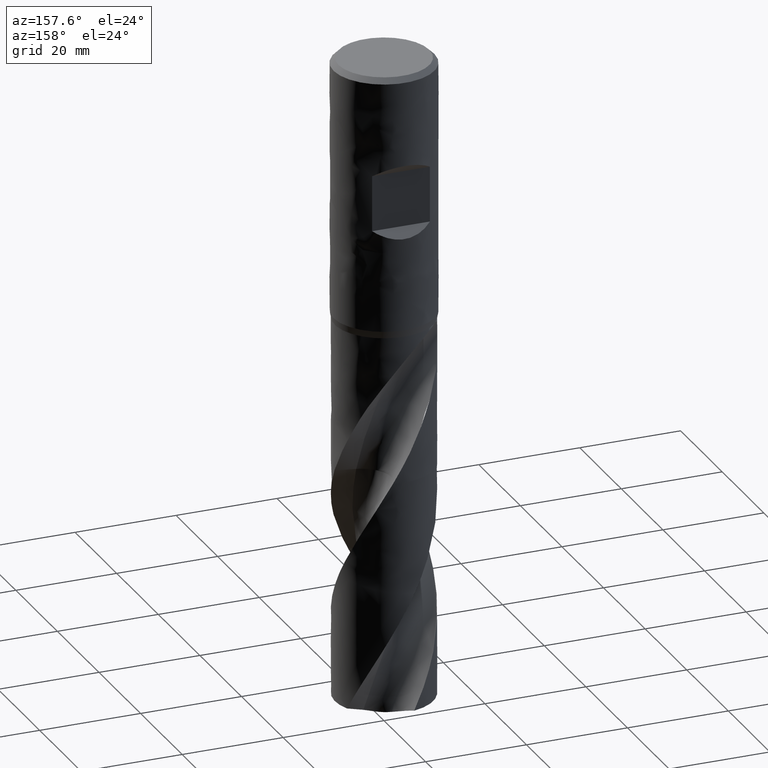
[diagram: clean part render]
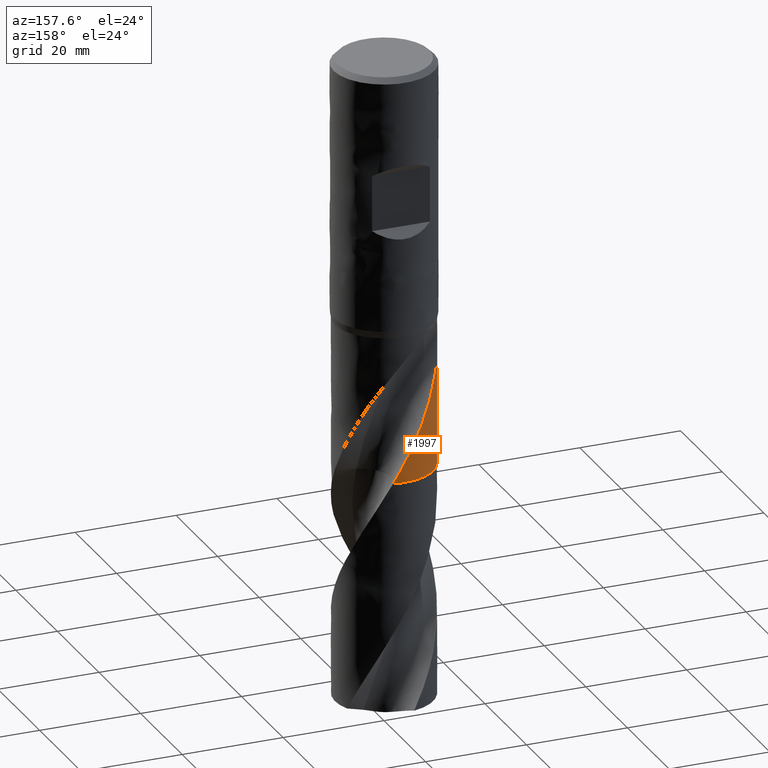
[diagram: same view with one face highlighted and labeled with its STEP entity id]
A machine part, auxiliary view. The second image highlights one B-rep face of the part: STEP entity #1997.
In plain terms, the highlighted face is a freeform B-spline surface patch.
Its self-contained STEP definition (entity closure, byte-faithful):
#150 = VERTEX_POINT('', #151);
#151 = CARTESIAN_POINT('', (-9.75, 3.78109699236745E-15, -52.));
#158 = EDGE_CURVE('', #150, #159, #161, .T.);
#159 = VERTEX_POINT('', #160);
#160 = CARTESIAN_POINT('', (-9.75, 5.55144143109861E-15, -80.9119187665169));
#161 = LINE('', #162, #163);
#162 = CARTESIAN_POINT('', (-9.75, 3.78109699236745E-15, -52.));
#163 = VECTOR('', #164, 28.9119187665169);
#164 = DIRECTION('', (0., 1.77034443873116E-15, -28.9119187665169));
#312 = VERTEX_POINT('', #313);
#313 = CARTESIAN_POINT('', (-7.73733106084228, 5.93263921496372, -52.));
#323 = EDGE_CURVE('', #150, #312, #324, .T.);
#324 = CIRCLE('', #325, 9.75);
#325 = AXIS2_PLACEMENT_3D('', #326, #327, #328);
#326 = CARTESIAN_POINT('', (1.94968771746041E-31, 3.18408167778312E-15, -52.));
#327 = DIRECTION('', (3.74939945665464E-33, 6.12323399573677E-17, -1.));
#328 = DIRECTION('', (-1., 6.12323399573677E-17, 0.));
#750 = VERTEX_POINT('', #751);
#751 = CARTESIAN_POINT('', (-9.74806672589503, 0.194152279147509, -81.25));
#780 = EDGE_CURVE('', #750, #159, #781, .T.);
#781 = CIRCLE('', #782, 39.3117468741166);
#782 = AXIS2_PLACEMENT_3D('', #783, #784, #785);
#783 = CARTESIAN_POINT('', (29.5572095367171, -0.517921730910399, -81.2093694392766));
#784 = DIRECTION('', (0.0151929059234464, 0.867038737985796, 0.498009038513962));
#785 = DIRECTION('', (-0.999835402587699, 0.018113517375165, -0.0010335475768406));
#1277 = EDGE_CURVE('', #1278, #1280, #1282, .T.);
#1278 = VERTEX_POINT('', #1279);
#1279 = CARTESIAN_POINT('', (-5.85396296018931, 7.79702620623604, -66.465219494543));
#1280 = VERTEX_POINT('', #1281);
#1281 = CARTESIAN_POINT('', (-3.62466349801125, 9.05120514219984, -70.9546777896775));
#1282 = B_SPLINE_CURVE_WITH_KNOTS('', 3, (#1283, #1284, #1285, #1286, #1287, #1288, #1289, #1290, #1291, #1292, #1293, #1294, #1295, #1296, #1297, #1298, #1299, #1300, #1301, #1302, #1303, #1304, #1305, #1306, #1307, #1308, #1309, #1310, #1311, #1312, #1313), .UNSPECIFIED., .F., .U., (4, 3, 3, 3, 3, 3, 3, 3, 3, 3, 4), (0., 0.664927491007082, 1.33002942543199, 1.99523638847751, 2.43859963683851, 2.88185553049903, 3.3250625436976, 3.76828220228506, 4.06382337097607, 4.72872997143826, 5.1728330557188), .UNSPECIFIED.);
#1283 = CARTESIAN_POINT('', (-5.85396296018931, 7.79702620623604, -66.465219494543));
#1284 = CARTESIAN_POINT('', (-5.75684096049353, 7.86994485160162, -66.6506260338306));
#1285 = CARTESIAN_POINT('', (-5.65961945618403, 7.94009931006799, -66.8370904733697));
#1286 = CARTESIAN_POINT('', (-5.56254979648989, 8.00753019111247, -67.024589683837));
#1287 = CARTESIAN_POINT('', (-5.4654546706157, 8.07497876261722, -67.212138084635));
#1288 = CARTESIAN_POINT('', (-5.36849302284058, 8.13971434181372, -67.40075409177));
#1289 = CARTESIAN_POINT('', (-5.2719670379924, 8.20175978374896, -67.59044930334));
#1290 = CARTESIAN_POINT('', (-5.17542581038139, 8.26381502350141, -67.7801744703579));
#1291 = CARTESIAN_POINT('', (-5.07930174703475, 8.32319025607507, -67.9710124852976));
#1292 = CARTESIAN_POINT('', (-4.98397246496512, 8.37988773603021, -68.1630135898678));
#1293 = CARTESIAN_POINT('', (-4.92043509613061, 8.41767684571077, -68.2909831364003));
#1294 = CARTESIAN_POINT('', (-4.85725065940077, 8.45427879234685, -68.419484300704));
#1295 = CARTESIAN_POINT('', (-4.79437651864224, 8.48978526215431, -68.5484313902961));
#1296 = CARTESIAN_POINT('', (-4.73151760204712, 8.5252831345274, -68.6773472570111));
#1297 = CARTESIAN_POINT('', (-4.66896513316995, 8.55968877606465, -68.8067174782659));
#1298 = CARTESIAN_POINT('', (-4.60659873207377, 8.59312214050612, -68.9364220856855));
#1299 = CARTESIAN_POINT('', (-4.54423920849133, 8.62655181805178, -69.066112389807));
#1300 = CARTESIAN_POINT('', (-4.48206267386032, 8.65901167181081, -69.1961433412772));
#1301 = CARTESIAN_POINT('', (-4.41986634606696, 8.69064332963359, -69.3263619403243));
#1302 = CARTESIAN_POINT('', (-4.35766824371515, 8.72227588995701, -69.4565842547116));
#1303 = CARTESIAN_POINT('', (-4.29544776833302, 8.75308207532832, -69.586998540855));
#1304 = CARTESIAN_POINT('', (-4.23292288371343, 8.78321489322306, -69.7174198813717));
#1305 = CARTESIAN_POINT('', (-4.19123096614002, 8.80330761258696, -69.8043855081253));
#1306 = CARTESIAN_POINT('', (-4.14940023563797, 8.82310201005819, -69.8913541953848));
#1307 = CARTESIAN_POINT('', (-4.10733362460648, 8.84264160170348, -69.9782654040617));
#1308 = CARTESIAN_POINT('', (-4.01269243651822, 8.88660164799019, -70.1737976764669));
#1309 = CARTESIAN_POINT('', (-3.91689827095504, 8.92924886928055, -70.3690750057076));
#1310 = CARTESIAN_POINT('', (-3.82006358679215, 8.97048572781122, -70.5641259609625));
#1311 = CARTESIAN_POINT('', (-3.75538595857763, 8.99802856773307, -70.6944040041648));
#1312 = CARTESIAN_POINT('', (-3.69024179690378, 9.02494352703114, -70.8245855668272));
#1313 = CARTESIAN_POINT('', (-3.62466349801125, 9.05120514219984, -70.9546777896775));
#1343 = VERTEX_POINT('', #1344);
#1344 = CARTESIAN_POINT('', (2.1303313621447, 9.51442001844899, -81.25));
#1432 = EDGE_CURVE('', #1280, #1343, #1433, .T.);
#1433 = B_SPLINE_CURVE_WITH_KNOTS('', 3, (#1434, #1435, #1436, #1437, #1438, #1439, #1440, #1441, #1442, #1443, #1444, #1445, #1446, #1447, #1448, #1449, #1450, #1451, #1452, #1453, #1454, #1455, #1456, #1457, #1458, #1459, #1460, #1461, #1462, #1463, #1464, #1465, #1466, #1467, #1468, #1469, #1470, #1471, #1472, #1473, #1474, #1475, #1476, #1477, #1478, #1479), .UNSPECIFIED., .F., .U., (4, 3, 3, 3, 3, 3, 3, 3, 3, 3, 3, 3, 3, 3, 3, 4), (0., 0.996956880423545, 1.9937032679824, 2.99039270729294, 3.98701310341876, 4.98349897480722, 5.64803103965125, 6.31257464400099, 6.97709494478144, 7.42020586720478, 7.55155081328548, 8.55038883735532, 9.21596897513576, 10.7148225179917, 11.7133785365004, 11.847017486979), .UNSPECIFIED.);
#1434 = CARTESIAN_POINT('', (-3.62466349801126, 9.05120514219984, -70.9546777896775));
#1435 = CARTESIAN_POINT('', (-3.47744827118326, 9.11015924285844, -71.2467188523294));
#1436 = CARTESIAN_POINT('', (-3.32791430311121, 9.16586845552114, -71.5382737034224));
#1437 = CARTESIAN_POINT('', (-3.1764719525387, 9.21805434648452, -71.8294398733439));
#1438 = CARTESIAN_POINT('', (-3.02506157680366, 9.27022921916025, -72.1205445677869));
#1439 = CARTESIAN_POINT('', (-2.87170322524557, 9.3189007878333, -72.4112927111839));
#1440 = CARTESIAN_POINT('', (-2.71657159443328, 9.363906170628, -72.7016338122818));
#1441 = CARTESIAN_POINT('', (-2.56144882693341, 9.40890898207883, -72.9919583249905));
#1442 = CARTESIAN_POINT('', (-2.40452957023712, 9.45025341019728, -73.2819199877046));
#1443 = CARTESIAN_POINT('', (-2.24596403477692, 9.48778928699914, -73.5714449048218));
#1444 = CARTESIAN_POINT('', (-2.08740948355026, 9.52532256359638, -73.8609497658197));
#1445 = CARTESIAN_POINT('', (-1.92718412093147, 9.55905048972008, -74.1500634708036));
#1446 = CARTESIAN_POINT('', (-1.76562927738669, 9.58879832173151, -74.4388132866062));
#1447 = CARTESIAN_POINT('', (-1.60409624066321, 9.61854213835322, -74.7275241266933));
#1448 = CARTESIAN_POINT('', (-1.44120850921204, 9.64431125883364, -75.0159175234165));
#1449 = CARTESIAN_POINT('', (-1.27734060090512, 9.66596611773923, -75.3040319824029));
#1450 = CARTESIAN_POINT('', (-1.1680610992127, 9.6804072137102, -75.4961684710766));
#1451 = CARTESIAN_POINT('', (-1.05833496068669, 9.69302098828013, -75.6881975630188));
#1452 = CARTESIAN_POINT('', (-0.948275465637582, 9.70377625676056, -75.8801304074523));
#1453 = CARTESIAN_POINT('', (-0.838214059420845, 9.71453171200472, -76.0720665847726));
#1454 = CARTESIAN_POINT('', (-0.727811206402193, 9.72342896762049, -76.2639204023718));
#1455 = CARTESIAN_POINT('', (-0.617218128512903, 9.73044406909752, -76.4557240743764));
#1456 = CARTESIAN_POINT('', (-0.506628928794191, 9.7374589245758, -76.6475210203964));
#1457 = CARTESIAN_POINT('', (-0.395841533906558, 9.74259184733451, -76.839281821419));
#1458 = CARTESIAN_POINT('', (-0.285044772086156, 9.74583241585379, -77.0310598808527));
#1459 = CARTESIAN_POINT('', (-0.211164026420301, 9.74799326978717, -77.1589400264501));
#1460 = CARTESIAN_POINT('', (-0.137284077093424, 9.74931318800562, -77.2868375998271));
#1461 = CARTESIAN_POINT('', (-0.0634306764708127, 9.74979366701073, -77.4147508902401));
#1462 = CARTESIAN_POINT('', (-0.0415393837227058, 9.74993608843576, -77.4526663723059));
#1463 = CARTESIAN_POINT('', (-0.0196500511138551, 9.75000476484471, -77.4905833348263));
#1464 = CARTESIAN_POINT('', (0.00223690797403611, 9.74999974339706, -77.5285015858276));
#1465 = CARTESIAN_POINT('', (0.168680517877495, 9.74996155682804, -77.8168582530346));
#1466 = CARTESIAN_POINT('', (0.334998327441475, 9.74566147793436, -78.1053183115855));
#1467 = CARTESIAN_POINT('', (0.501036055960348, 9.73711779073394, -78.3937823862568));
#1468 = CARTESIAN_POINT('', (0.611676031172803, 9.73142466695713, -78.586001699036));
#1469 = CARTESIAN_POINT('', (0.722202871733262, 9.72384676993542, -78.7782395794634));
#1470 = CARTESIAN_POINT('', (0.832581759622021, 9.71438663084525, -78.9704605118706));
#1471 = CARTESIAN_POINT('', (1.08114955450887, 9.69308286562397, -79.4033325421424));
#1472 = CARTESIAN_POINT('', (1.32902699699821, 9.66221814962053, -79.8362363560337));
#1473 = CARTESIAN_POINT('', (1.57529260482135, 9.62189966738353, -80.2690708094368));
#1474 = CARTESIAN_POINT('', (1.73935800401635, 9.59503896222205, -80.557430836688));
#1475 = CARTESIAN_POINT('', (1.90273503716934, 9.56398046259053, -80.8458227956314));
#1476 = CARTESIAN_POINT('', (2.06516541977674, 9.52877703532611, -81.1342106378266));
#1477 = CARTESIAN_POINT('', (2.0869038355042, 9.5240656831479, -81.1728062176913));
#1478 = CARTESIAN_POINT('', (2.10862664683224, 9.51927982447467, -81.211403860797));
#1479 = CARTESIAN_POINT('', (2.1303313621447, 9.51442001844899, -81.25));
#1482 = EDGE_CURVE('', #1278, #312, #1483, .T.);
#1483 = B_SPLINE_CURVE_WITH_KNOTS('', 3, (#1484, #1485, #1486, #1487, #1488, #1489, #1490, #1491, #1492, #1493, #1494, #1495, #1496, #1497, #1498, #1499, #1500, #1501, #1502, #1503, #1504, #1505, #1506, #1507, #1508, #1509, #1510, #1511, #1512, #1513, #1514, #1515, #1516, #1517, #1518, #1519, #1520, #1521, #1522, #1523, #1524, #1525, #1526, #1527, #1528, #1529, #1530, #1531, #1532, #1533, #1534, #1535, #1536, #1537, #1538, #1539, #1540, #1541, #1542, #1543, #1544, #1545, #1546, #1547, #1548, #1549, #1550, #1551, #1552, #1553, #1554, #1555, #1556, #1557, #1558, #1559, #1560, #1561, #1562, #1563, #1564, #1565, #1566, #1567, #1568, #1569, #1570, #1571, #1572, #1573, #1574, #1575, #1576, #1577, #1578, #1579, #1580, #1581, #1582, #1583, #1584, #1585, #1586, #1587, #1588, #1589, #1590, #1591, #1592, #1593, #1594, #1595, #1596, #1597, #1598, #1599, #1600, #1601, #1602, #1603, #1604, #1605, #1606, #1607, #1608, #1609, #1610, #1611, #1612, #1613, #1614, #1615, #1616, #1617, #1618, #1619, #1620, #1621, #1622, #1623, #1624, #1625), .UNSPECIFIED., .F., .U., (4, 3, 3, 3, 3, 3, 3, 3, 3, 3, 3, 3, 3, 3, 3, 3, 3, 3, 3, 3, 3, 3, 3, 3, 3, 3, 3, 3, 3, 3, 3, 3, 3, 3, 3, 3, 3, 3, 3, 3, 3, 3, 3, 3, 3, 3, 3, 4), (0., 0.443399391363084, 1.10843741935481, 1.77323257912587, 2.43773967301963, 2.88072137979201, 3.323613030624, 3.7664138881382, 4.20912359200579, 4.65174189198181, 5.09426273232536, 5.53668732142372, 5.97902052602293, 6.42126780689815, 6.8634347886953, 7.30552547606236, 7.74755192133971, 8.18952817537151, 8.63146997627569, 9.07339222310724, 9.51531564386176, 9.95727054270665, 10.3992927541893, 10.8414251299779, 11.2837204169556, 11.7262513928184, 12.1691106039298, 12.6124174553603, 13.0563268799099, 13.3524202814033, 13.4108329233773, 13.7073883908102, 14.0043325411541, 14.3017151624936, 14.5995685531594, 14.7977741703294, 14.9960987314737, 15.1945221422452, 15.393015334973, 15.5915415885284, 15.7900594869459, 15.9885270580721, 16.1869061380134, 16.3851658917117, 16.58328476593, 16.8810236149624, 17.1782130802422, 17.3321108968441), .UNSPECIFIED.);
#1484 = CARTESIAN_POINT('', (-5.85396296018931, 7.79702620623604, -66.465219494543));
#1485 = CARTESIAN_POINT('', (-5.91872766932752, 7.74840123071406, -66.3415832367755));
#1486 = CARTESIAN_POINT('', (-5.98331187861969, 7.6986488158349, -66.2182904835666));
#1487 = CARTESIAN_POINT('', (-6.04758717849578, 7.64782252137814, -66.0952857940355));
#1488 = CARTESIAN_POINT('', (-6.14399127717251, 7.57159007881268, -65.9107956983048));
#1489 = CARTESIAN_POINT('', (-6.23970948709901, 7.49293098517398, -65.726933292894));
#1490 = CARTESIAN_POINT('', (-6.33432234254677, 7.41207531402055, -65.5434871182534));
#1491 = CARTESIAN_POINT('', (-6.42890064590143, 7.33124917091238, -65.3601079371443));
#1492 = CARTESIAN_POINT('', (-6.52238588475367, 7.24821793295064, -65.1771210519808));
#1493 = CARTESIAN_POINT('', (-6.61438657262306, 7.16326673158999, -64.9942959668355));
#1494 = CARTESIAN_POINT('', (-6.70634739519188, 7.07835234087993, -64.8115501025867));
#1495 = CARTESIAN_POINT('', (-6.79683614624085, 6.99150902368205, -64.6289439288778));
#1496 = CARTESIAN_POINT('', (-6.8854928498871, 6.90307816949465, -64.4462330357611));
#1497 = CARTESIAN_POINT('', (-6.94459424738747, 6.84412733047541, -64.3244321038786));
#1498 = CARTESIAN_POINT('', (-7.00288512588381, 6.78446925557221, -64.2025753276115));
#1499 = CARTESIAN_POINT('', (-7.06026895435982, 6.72421759702224, -64.0805897649969));
#1500 = CARTESIAN_POINT('', (-7.11764111699375, 6.6639781873297, -63.9586290014301));
#1501 = CARTESIAN_POINT('', (-7.1741097911279, 6.60314214773298, -63.8365328431663));
#1502 = CARTESIAN_POINT('', (-7.22959072712169, 6.54182833146181, -63.71423296152));
#1503 = CARTESIAN_POINT('', (-7.28506028945729, 6.48052708459627, -63.5919581514956));
#1504 = CARTESIAN_POINT('', (-7.33954574805837, 6.41874474431002, -63.469472733359));
#1505 = CARTESIAN_POINT('', (-7.39297414220005, 6.35660548821159, -63.3467129519546));
#1506 = CARTESIAN_POINT('', (-7.44639153773394, 6.29447902391266, -63.2239784415079));
#1507 = CARTESIAN_POINT('', (-7.49875560214868, 6.23199200038384, -63.10096227099));
#1508 = CARTESIAN_POINT('', (-7.55000363489919, 6.16927427766095, -62.9776050573292));
#1509 = CARTESIAN_POINT('', (-7.601241086744, 6.10656950392896, -62.8542733125688));
#1510 = CARTESIAN_POINT('', (-7.65136699355828, 6.04362918138075, -62.7305933454536));
#1511 = CARTESIAN_POINT('', (-7.70032549738943, 5.98059254875755, -62.6065073581863));
#1512 = CARTESIAN_POINT('', (-7.74927322110194, 5.91756979610056, -62.4824486932748));
#1513 = CARTESIAN_POINT('', (-7.79705655215994, 5.85444753065605, -62.3579743579664));
#1514 = CARTESIAN_POINT('', (-7.843625935772, 5.79137567247065, -62.2330282393242));
#1515 = CARTESIAN_POINT('', (-7.89018519023137, 5.72831753283663, -62.1081092972993));
#1516 = CARTESIAN_POINT('', (-7.93553473749408, 5.66530480176768, -61.9827090507752));
#1517 = CARTESIAN_POINT('', (-7.97963456104162, 5.6024933977855, -61.8567774490249));
#1518 = CARTESIAN_POINT('', (-8.02372527560113, 5.5396949677402, -61.7308718589309));
#1519 = CARTESIAN_POINT('', (-8.06657068445405, 5.47709226049362, -61.6044242414585));
#1520 = CARTESIAN_POINT('', (-8.10813899996919, 5.41484828570282, -61.4773903314545));
#1521 = CARTESIAN_POINT('', (-8.14969924079215, 5.35261640187433, -61.3503810979307));
#1522 = CARTESIAN_POINT('', (-8.18998699332345, 5.29073697848153, -61.2227735157366));
#1523 = CARTESIAN_POINT('', (-8.22897732857775, 5.22938161982403, -61.0945289053113));
#1524 = CARTESIAN_POINT('', (-8.26796058433577, 5.1680374014922, -60.9663075803292));
#1525 = CARTESIAN_POINT('', (-8.30565149447721, 5.10720978185531, -60.8374357606578));
#1526 = CARTESIAN_POINT('', (-8.34202905366888, 5.04708344172596, -60.7078787772786));
#1527 = CARTESIAN_POINT('', (-8.37840033603468, 4.98696747619498, -60.5783441485225));
#1528 = CARTESIAN_POINT('', (-8.41346309083626, 4.92754537397212, -60.4481082923574));
#1529 = CARTESIAN_POINT('', (-8.44720247952864, 4.86901122096112, -60.317144838976));
#1530 = CARTESIAN_POINT('', (-8.48093696540606, 4.81048557379839, -60.1862004164545));
#1531 = CARTESIAN_POINT('', (-8.51335337084109, 4.75283917463652, -60.0545100580743));
#1532 = CARTESIAN_POINT('', (-8.54444189919767, 4.6962764645233, -59.922056776001));
#1533 = CARTESIAN_POINT('', (-8.57552689751215, 4.63972017699611, -59.789618533741));
#1534 = CARTESIAN_POINT('', (-8.60528951670237, 4.58423792699469, -59.6563959775729));
#1535 = CARTESIAN_POINT('', (-8.63372274952358, 4.53004762495488, -59.5223820184934));
#1536 = CARTESIAN_POINT('', (-8.6621537659049, 4.47586154718137, -59.388378506129));
#1537 = CARTESIAN_POINT('', (-8.68926114768623, 4.42295668820606, -59.2535584979199));
#1538 = CARTESIAN_POINT('', (-8.71503793824912, 4.37156879562462, -59.1179257710165));
#1539 = CARTESIAN_POINT('', (-8.74081358829705, 4.32018317674208, -58.9822990452929));
#1540 = CARTESIAN_POINT('', (-8.765264097074, 4.2703037949447, -58.8458292931364));
#1541 = CARTESIAN_POINT('', (-8.78837910840619, 4.22219050339161, -58.7085329635391));
#1542 = CARTESIAN_POINT('', (-8.81149418114113, 4.1740770840303, -58.5712362692277));
#1543 = CARTESIAN_POINT('', (-8.83327997800376, 4.12771697359926, -58.4330773143808));
#1544 = CARTESIAN_POINT('', (-8.8537227881978, 4.08339231396496, -58.2940916818905));
#1545 = CARTESIAN_POINT('', (-8.8741670545279, 4.03906449709668, -58.1550961494898));
#1546 = CARTESIAN_POINT('', (-8.89327474169229, 3.99675834084279, -58.0152308197759));
#1547 = CARTESIAN_POINT('', (-8.91102399954694, 3.9567854730198, -57.8745545421558));
#1548 = CARTESIAN_POINT('', (-8.9287759607303, 3.91680651706615, -57.7338568386133));
#1549 = CARTESIAN_POINT('', (-8.9451760331526, 3.87914623027899, -57.5922955792563));
#1550 = CARTESIAN_POINT('', (-8.96018812963496, 3.84415513234686, -57.4499595232064));
#1551 = CARTESIAN_POINT('', (-8.97520396755191, 3.80915531365384, -57.3075879930279));
#1552 = CARTESIAN_POINT('', (-8.9888381616166, 3.77681019119939, -57.1643765462577));
#1553 = CARTESIAN_POINT('', (-9.00103346750427, 3.74751871467883, -57.0204550425835));
#1554 = CARTESIAN_POINT('', (-9.01323326695969, 3.71821644521585, -56.8764805085851));
#1555 = CARTESIAN_POINT('', (-9.02400052831599, 3.69195320620483, -56.7317147108891));
#1556 = CARTESIAN_POINT('', (-9.03324937366944, 3.66918325422711, -56.5863458260165));
#1557 = CARTESIAN_POINT('', (-9.04250314751775, 3.64640116867087, -56.4408994774418));
#1558 = CARTESIAN_POINT('', (-9.05024417728882, 3.62709960177763, -56.2947470719719));
#1559 = CARTESIAN_POINT('', (-9.05634454661741, 3.61180335192174, -56.1481588517738));
#1560 = CARTESIAN_POINT('', (-9.06244944072811, 3.59649575649086, -56.0014619037723));
#1561 = CARTESIAN_POINT('', (-9.06691775328615, 3.5851854001553, -55.8541965234151));
#1562 = CARTESIAN_POINT('', (-9.06956181276388, 3.57848410985087, -55.7067526750503));
#1563 = CARTESIAN_POINT('', (-9.07220854484636, 3.571776045909, -55.5591597910332));
#1564 = CARTESIAN_POINT('', (-9.07303113003312, 3.56968039260919, -55.4112147937152));
#1565 = CARTESIAN_POINT('', (-9.07176213167925, 3.57290243726727, -55.2634864254293));
#1566 = CARTESIAN_POINT('', (-9.07049140841565, 3.57612886154975, -55.1155572545991));
#1567 = CARTESIAN_POINT('', (-9.06712270533584, 3.58469464256724, -54.9676146018692));
#1568 = CARTESIAN_POINT('', (-9.06128759021003, 3.59938428172177, -54.8204914219595));
#1569 = CARTESIAN_POINT('', (-9.05739549197972, 3.6091824634756, -54.7223583336111));
#1570 = CARTESIAN_POINT('', (-9.05240004716158, 3.62171685355388, -54.624487613171));
#1571 = CARTESIAN_POINT('', (-9.04616240919581, 3.63723049399577, -54.5272164732786));
#1572 = CARTESIAN_POINT('', (-9.04493186197179, 3.64029099017797, -54.5080270410242));
#1573 = CARTESIAN_POINT('', (-9.04365276333202, 3.64346776003722, -54.4888588233245));
#1574 = CARTESIAN_POINT('', (-9.04232393275966, 3.64676265954366, -54.4697148153808));
#1575 = CARTESIAN_POINT('', (-9.03557758542444, 3.66349055320253, -54.372522494807));
#1576 = CARTESIAN_POINT('', (-9.02754557500762, 3.68327893492056, -54.2758748051115));
#1577 = CARTESIAN_POINT('', (-9.01805866205347, 3.70636182364356, -54.1802251237845));
#1578 = CARTESIAN_POINT('', (-9.00855931499728, 3.72947496614829, -54.0844500784004));
#1579 = CARTESIAN_POINT('', (-8.99758689195929, 3.7559272011429, -53.989537160246));
#1580 = CARTESIAN_POINT('', (-8.98495064249874, 3.7859162631867, -53.8960583090198));
#1581 = CARTESIAN_POINT('', (-8.97229573421337, 3.81594960740908, -53.8024414258945));
#1582 = CARTESIAN_POINT('', (-8.9579481895993, 3.84958749858906, -53.7100966464677));
#1583 = CARTESIAN_POINT('', (-8.94170706774814, 3.88694928119508, -53.6197274457603));
#1584 = CARTESIAN_POINT('', (-8.92544023551097, 3.92437020909056, -53.5292151867681));
#1585 = CARTESIAN_POINT('', (-8.90723611283717, 3.96561313025918, -53.4404897908134));
#1586 = CARTESIAN_POINT('', (-8.88690581837178, 4.01066141370596, -53.3543809295452));
#1587 = CARTESIAN_POINT('', (-8.87337708682786, 4.04063865453261, -53.2970800542611));
#1588 = CARTESIAN_POINT('', (-8.85888844729036, 4.07233952800646, -53.2408587661278));
#1589 = CARTESIAN_POINT('', (-8.84339480479098, 4.10571167114773, -53.185983462417));
#1590 = CARTESIAN_POINT('', (-8.8278918644955, 4.13910384104399, -53.1310752278197));
#1591 = CARTESIAN_POINT('', (-8.81136240795411, 4.17421257942805, -53.0774450584346));
#1592 = CARTESIAN_POINT('', (-8.79377566991063, 4.21093926188571, -53.0253667535905));
#1593 = CARTESIAN_POINT('', (-8.77618016622316, 4.24768424978598, -52.9732624916941));
#1594 = CARTESIAN_POINT('', (-8.75750132234122, 4.28610040175758, -52.9226398049224));
#1595 = CARTESIAN_POINT('', (-8.73772787024466, 4.32603879612195, -52.8737666503142));
#1596 = CARTESIAN_POINT('', (-8.71794746417949, 4.3659912361036, -52.8248763078937));
#1597 = CARTESIAN_POINT('', (-8.69704186457532, 4.40752648476461, -52.7776648089058));
#1598 = CARTESIAN_POINT('', (-8.67502332340282, 4.45044608308192, -52.7323788350121));
#1599 = CARTESIAN_POINT('', (-8.65300111484411, 4.49337283004462, -52.6870853183319));
#1600 = CARTESIAN_POINT('', (-8.62983124718146, 4.53775058314992, -52.6436484652399));
#1601 = CARTESIAN_POINT('', (-8.60555136705213, 4.58333783055851, -52.6022784734285));
#1602 = CARTESIAN_POINT('', (-8.5812725087612, 4.6289231593909, -52.5609102227066));
#1603 = CARTESIAN_POINT('', (-8.55584555103069, 4.67578888463939, -52.5215440225726));
#1604 = CARTESIAN_POINT('', (-8.52933265483212, 4.72366218766917, -52.4843414618457));
#1605 = CARTESIAN_POINT('', (-8.50282648005393, 4.77152335409222, -52.447148332531));
#1606 = CARTESIAN_POINT('', (-8.47519395570085, 4.8204650291947, -52.4120600218793));
#1607 = CARTESIAN_POINT('', (-8.44651820287207, 4.87019817343724, -52.3791827807477));
#1608 = CARTESIAN_POINT('', (-8.41785523576607, 4.91990914305026, -52.346320198666));
#1609 = CARTESIAN_POINT('', (-8.38810749195704, 4.97048423796783, -52.3156172702684));
#1610 = CARTESIAN_POINT('', (-8.3573735925641, 5.02163386103692, -52.2871244821939));
#1611 = CARTESIAN_POINT('', (-8.32665817980165, 5.07275271729153, -52.2586488327076));
#1612 = CARTESIAN_POINT('', (-8.29491509929097, 5.12451637674814, -52.2323400628492));
#1613 = CARTESIAN_POINT('', (-8.26225225217999, 5.17664830960602, -52.2081980526859));
#1614 = CARTESIAN_POINT('', (-8.22961261464551, 5.22874319853815, -52.1840731973601));
#1615 = CARTESIAN_POINT('', (-8.19601276192433, 5.2812725644033, -52.1620800713461));
#1616 = CARTESIAN_POINT('', (-8.16156399372303, 5.33398286239879, -52.1421768331583));
#1617 = CARTESIAN_POINT('', (-8.1097933755257, 5.41319744263126, -52.1122656636472));
#1618 = CARTESIAN_POINT('', (-8.05599395093064, 5.49298428112909, -52.0870167150648));
#1619 = CARTESIAN_POINT('', (-8.00053645181702, 5.57260410249528, -52.0661606720763));
#1620 = CARTESIAN_POINT('', (-7.94518128214098, 5.65207701042917, -52.0453431123801));
#1621 = CARTESIAN_POINT('', (-7.88805245666272, 5.73156044835893, -52.0288505868036));
#1622 = CARTESIAN_POINT('', (-7.82948964255432, 5.81047260875865, -52.0163295468392));
#1623 = CARTESIAN_POINT('', (-7.79916323371996, 5.85133680688027, -52.0098455999393));
#1624 = CARTESIAN_POINT('', (-7.7684293470928, 5.89208091916541, -52.0044200183857));
#1625 = CARTESIAN_POINT('', (-7.73733106084228, 5.93263921496372, -52.));
#1997 = ADVANCED_FACE('', (#1998), #2013, .T.);
#1998 = FACE_OUTER_BOUND('', #1999, .T.);
#1999 = EDGE_LOOP('', (#2000, #2007, #2008, #2009, #2010, #2011, #2012));
#2000 = ORIENTED_EDGE('', *, *, #2001, .F.);
#2001 = EDGE_CURVE('', #750, #1343, #2002, .T.);
#2002 = CIRCLE('', #2003, 9.75000000000001);
#2003 = AXIS2_PLACEMENT_3D('', #2004, #2005, #2006);
#2004 = CARTESIAN_POINT('', (3.0463870585319E-31, 4.97512762153612E-15, -81.25));
#2005 = DIRECTION('', (3.74939945665464E-33, 6.12323399573677E-17, -1.));
#2006 = DIRECTION('', (-1., 6.12323399573677E-17, 0.));
#2007 = ORIENTED_EDGE('', *, *, #780, .T.);
#2008 = ORIENTED_EDGE('', *, *, #158, .F.);
#2009 = ORIENTED_EDGE('', *, *, #323, .T.);
#2010 = ORIENTED_EDGE('', *, *, #1482, .F.);
#2011 = ORIENTED_EDGE('', *, *, #1277, .T.);
#2012 = ORIENTED_EDGE('', *, *, #1432, .T.);
#2013 = (
   BOUNDED_SURFACE ()
   B_SPLINE_SURFACE (2, 1, ((#2014, #2015), (#2016, #2017), (#2018, #2019), (#2020, #2021), (#2022, #2023), (#2024, #2025), (#2026, #2027), (#2028, #2029), (#2030, #2031)), .UNSPECIFIED., .T., .F., .U.)
   B_SPLINE_SURFACE_WITH_KNOTS ((3, 2, 2, 2, 3), (2, 2), (0., 15.3152641862502, 30.6305283725005, 45.9457925587507, 61.261056745001), (0., 0.387667327043724), .UNSPECIFIED.)
   GEOMETRIC_REPRESENTATION_ITEM ()
   RATIONAL_B_SPLINE_SURFACE (((1., 1.), (0.707106781186548, 0.707106781186548), (1., 1.), (0.707106781186548, 0.707106781186548), (1., 1.), (0.707106781186548, 0.707106781186548), (1., 1.), (0.707106781186548, 0.707106781186548), (1., 1.)))
   REPRESENTATION_ITEM ('')
   SURFACE ()
);
#2014 = CARTESIAN_POINT('', (-9.75, 3.78109699236745E-15, -52.));
#2015 = CARTESIAN_POINT('', (-9.75, 5.57214293612046E-15, -81.25));
#2016 = CARTESIAN_POINT('', (-9.75, 9.75, -52.));
#2017 = CARTESIAN_POINT('', (-9.75, 9.75000000000001, -81.25));
#2018 = CARTESIAN_POINT('', (1.97215226305253E-31, 9.75, -52.));
#2019 = CARTESIAN_POINT('', (2.95822839457879E-31, 9.75000000000001, -81.25));
#2020 = CARTESIAN_POINT('', (9.75, 9.75, -52.));
#2021 = CARTESIAN_POINT('', (9.75, 9.75000000000001, -81.25));
#2022 = CARTESIAN_POINT('', (9.75, 3.78109699236745E-15, -52.));
#2023 = CARTESIAN_POINT('', (9.75, 5.57214293612046E-15, -81.25));
#2024 = CARTESIAN_POINT('', (9.75, -9.74999999999999, -52.));
#2025 = CARTESIAN_POINT('', (9.75, -9.74999999999999, -81.25));
#2026 = CARTESIAN_POINT('', (1.19403062916867E-15, -9.75, -52.));
#2027 = CARTESIAN_POINT('', (1.19403062916867E-15, -9.74999999999999, -81.25));
#2028 = CARTESIAN_POINT('', (-9.75, -9.75, -52.));
#2029 = CARTESIAN_POINT('', (-9.75, -9.74999999999999, -81.25));
#2030 = CARTESIAN_POINT('', (-9.75, 3.78109699236745E-15, -52.));
#2031 = CARTESIAN_POINT('', (-9.75, 5.57214293612046E-15, -81.25));